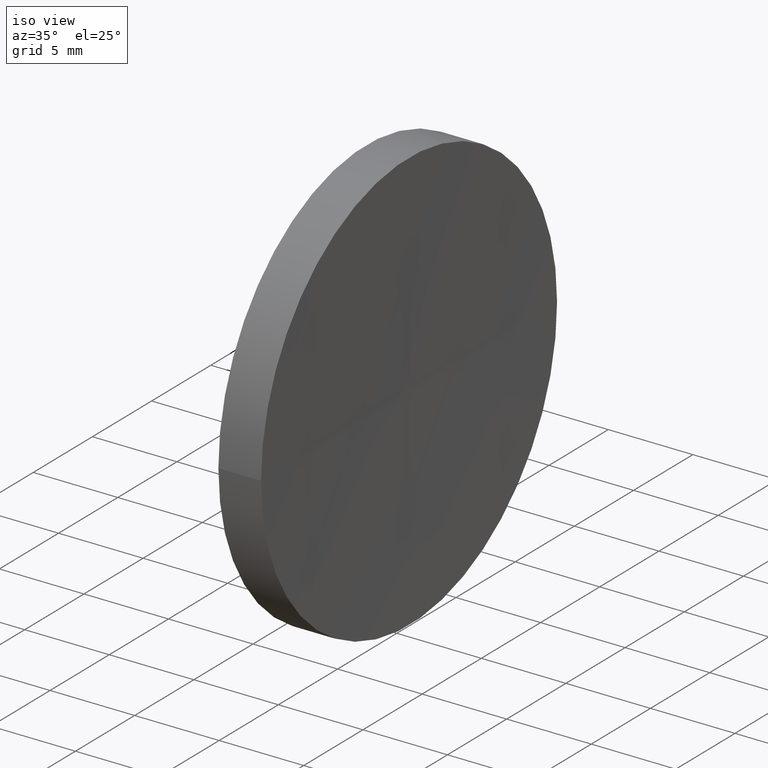
[diagram: clean part render]
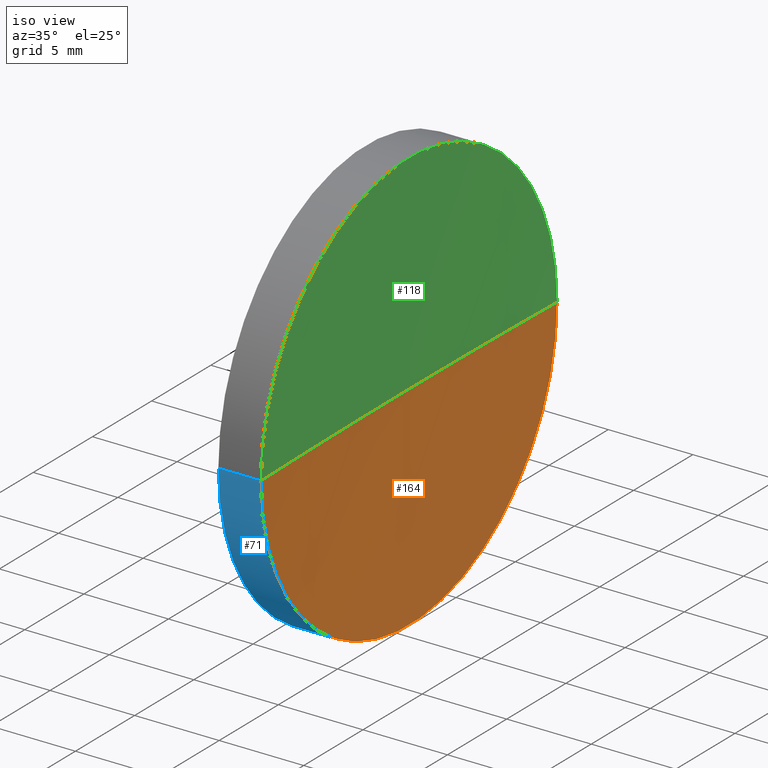
[diagram: same view with three faces highlighted in distinct colors, each labeled with its STEP entity id]
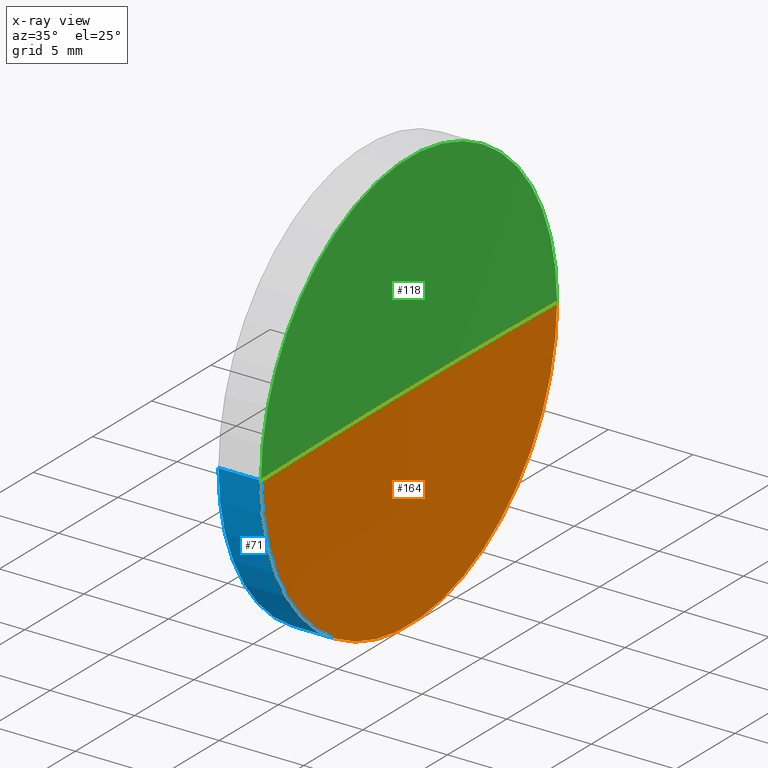
[diagram: x-ray of the same camera — body ghosted, the three highlighted faces saturated]
A machine part, iso view with three faces highlighted in distinct colors.
The next image is the same camera in x-ray (body ghosted, the three faces saturated) — at least one of them is partly hidden behind the body in this view.
Their STEP definitions:

[orange] entity #164 — the highlighted spherical surface has radius 481.4 mm.
#1 = ORIENTED_EDGE ( 'NONE', *, *, #87, .F. ) ;
#9 = DIRECTION ( 'NONE',  ( 0.0000000000000000000, 0.0000000000000000000, -1.000000000000000000 ) ) ;
#19 = ORIENTED_EDGE ( 'NONE', *, *, #49, .T. ) ;
#36 = DIRECTION ( 'NONE',  ( -1.000000000000000000, -6.937607244762875000E-016, -0.0000000000000000000 ) ) ;
#38 = CIRCLE ( 'NONE', #180, 481.4000000000000300 ) ;
#49 = EDGE_CURVE ( 'NONE', #59, #55, #38, .T. ) ;
#54 = DIRECTION ( 'NONE',  ( -1.000000000000000000, 0.0000000000000000000, 0.0000000000000000000 ) ) ;
#55 = VERTEX_POINT ( 'NONE', #106 ) ;
#59 = VERTEX_POINT ( 'NONE', #129 ) ;
#60 = DIRECTION ( 'NONE',  ( 6.918714320472516000E-016, -1.000000000000000000, 0.0000000000000000000 ) ) ;
#67 = CARTESIAN_POINT ( 'NONE',  ( 606.8121936984948700, 65.21684047094143500, 0.0000000000000000000 ) ) ;
#69 = DIRECTION ( 'NONE',  ( 8.496118506040342700E-032, -1.224646799147353200E-016, 1.000000000000000000 ) ) ;
#73 = SPHERICAL_SURFACE ( 'NONE', #91, 481.4000000000000300 ) ;
#87 = EDGE_CURVE ( 'NONE', #107, #55, #149, .T. ) ;
#91 = AXIS2_PLACEMENT_3D ( 'NONE', #104, #184, #60 ) ;
#94 = DIRECTION ( 'NONE',  ( 0.0000000000000000000, -1.000000000000000000, -1.224646799147353200E-016 ) ) ;
#96 = CARTESIAN_POINT ( 'NONE',  ( 606.8121936984948700, 65.21684047094143500, 0.0000000000000000000 ) ) ;
#103 = EDGE_LOOP ( 'NONE', ( #152, #19, #1 ) ) ;
#104 = CARTESIAN_POINT ( 'NONE',  ( 606.8121936984948700, 65.21684047094143500, 0.0000000000000000000 ) ) ;
#106 = CARTESIAN_POINT ( 'NONE',  ( 125.4121936984947600, 65.21684047094107900, 0.0000000000000000000 ) ) ;
#107 = VERTEX_POINT ( 'NONE', #113 ) ;
#108 = AXIS2_PLACEMENT_3D ( 'NONE', #160, #36, #175 ) ;
#110 = EDGE_CURVE ( 'NONE', #59, #107, #126, .T. ) ;
#113 = CARTESIAN_POINT ( 'NONE',  ( 125.5745081417628500, 52.71684047094019100, 0.0000000000000000000 ) ) ;
#115 = AXIS2_PLACEMENT_3D ( 'NONE', #67, #9, #54 ) ;
#126 = CIRCLE ( 'NONE', #108, 12.50000000000007300 ) ;
#129 = CARTESIAN_POINT ( 'NONE',  ( 125.5745081417628500, 77.71684047094123600, 1.530808498934208100E-015 ) ) ;
#132 = FACE_OUTER_BOUND ( 'NONE', #103, .T. ) ;
#149 = CIRCLE ( 'NONE', #115, 481.4000000000000300 ) ;
#152 = ORIENTED_EDGE ( 'NONE', *, *, #110, .F. ) ;
#160 = CARTESIAN_POINT ( 'NONE',  ( 125.5745081417627900, 65.21684047094032600, 0.0000000000000000000 ) ) ;
#164 = ADVANCED_FACE ( 'NONE', ( #132 ), #73, .F. ) ;
#175 = DIRECTION ( 'NONE',  ( 0.0000000000000000000, -1.000000000000000000, 0.0000000000000000000 ) ) ;
#180 = AXIS2_PLACEMENT_3D ( 'NONE', #96, #69, #94 ) ;
#184 = DIRECTION ( 'NONE',  ( -0.0000000000000000000, 0.0000000000000000000, 1.000000000000000000 ) ) ;

[blue] entity #71 — the highlighted cylindrical surface (partial cylindrical patch) has radius 12.5 mm, axis along (-1, -0, -0).
#4 = CYLINDRICAL_SURFACE ( 'NONE', #82, 12.50000000000004600 ) ;
#6 = VECTOR ( 'NONE', #80, 1000.000000000000000 ) ;
#11 = VECTOR ( 'NONE', #44, 1000.000000000000000 ) ;
#16 = VERTEX_POINT ( 'NONE', #128 ) ;
#31 = ORIENTED_EDGE ( 'NONE', *, *, #110, .T. ) ;
#36 = DIRECTION ( 'NONE',  ( -1.000000000000000000, -6.937607244762875000E-016, -0.0000000000000000000 ) ) ;
#37 = CARTESIAN_POINT ( 'NONE',  ( 115.9444912979631800, 52.71684047094028400, 0.0000000000000000000 ) ) ;
#41 = LINE ( 'NONE', #161, #6 ) ;
#44 = DIRECTION ( 'NONE',  ( -1.000000000000000000, -6.937607244762875000E-016, -0.0000000000000000000 ) ) ;
#51 = DIRECTION ( 'NONE',  ( 1.110223024625156100E-015, -1.000000000000000000, 0.0000000000000000000 ) ) ;
#59 = VERTEX_POINT ( 'NONE', #129 ) ;
#63 = LINE ( 'NONE', #37, #11 ) ;
#64 = CARTESIAN_POINT ( 'NONE',  ( 115.9444912979631700, 65.21684047094032600, 0.0000000000000000000 ) ) ;
#70 = ORIENTED_EDGE ( 'NONE', *, *, #121, .F. ) ;
#71 = ADVANCED_FACE ( 'NONE', ( #119 ), #4, .T. ) ;
#72 = ORIENTED_EDGE ( 'NONE', *, *, #78, .F. ) ;
#75 = ORIENTED_EDGE ( 'NONE', *, *, #156, .T. ) ;
#78 = EDGE_CURVE ( 'NONE', #171, #16, #133, .T. ) ;
#80 = DIRECTION ( 'NONE',  ( -1.000000000000000000, -6.937607244762875000E-016, -0.0000000000000000000 ) ) ;
#82 = AXIS2_PLACEMENT_3D ( 'NONE', #64, #93, #190 ) ;
#88 = CARTESIAN_POINT ( 'NONE',  ( 123.0516406468668300, 77.71684047094032600, 0.0000000000000000000 ) ) ;
#93 = DIRECTION ( 'NONE',  ( -1.000000000000000000, -6.937607244762875000E-016, -0.0000000000000000000 ) ) ;
#107 = VERTEX_POINT ( 'NONE', #113 ) ;
#108 = AXIS2_PLACEMENT_3D ( 'NONE', #160, #36, #175 ) ;
#110 = EDGE_CURVE ( 'NONE', #59, #107, #126, .T. ) ;
#113 = CARTESIAN_POINT ( 'NONE',  ( 125.5745081417628500, 52.71684047094019100, 0.0000000000000000000 ) ) ;
#114 = CARTESIAN_POINT ( 'NONE',  ( 123.0516406468668300, 65.21684047094032600, 0.0000000000000000000 ) ) ;
#119 = FACE_OUTER_BOUND ( 'NONE', #162, .T. ) ;
#121 = EDGE_CURVE ( 'NONE', #59, #171, #41, .T. ) ;
#126 = CIRCLE ( 'NONE', #108, 12.50000000000007300 ) ;
#128 = CARTESIAN_POINT ( 'NONE',  ( 123.0516406468668300, 52.71684047094017700, -1.530808498934191500E-015 ) ) ;
#129 = CARTESIAN_POINT ( 'NONE',  ( 125.5745081417628500, 77.71684047094123600, 1.530808498934208100E-015 ) ) ;
#133 = CIRCLE ( 'NONE', #176, 12.50000000000000400 ) ;
#148 = DIRECTION ( 'NONE',  ( -1.000000000000000000, -6.937607244762875000E-016, -0.0000000000000000000 ) ) ;
#156 = EDGE_CURVE ( 'NONE', #107, #16, #63, .T. ) ;
#160 = CARTESIAN_POINT ( 'NONE',  ( 125.5745081417627900, 65.21684047094032600, 0.0000000000000000000 ) ) ;
#161 = CARTESIAN_POINT ( 'NONE',  ( 115.9444912979631500, 77.71684047094038300, 1.530808498934197200E-015 ) ) ;
#162 = EDGE_LOOP ( 'NONE', ( #70, #31, #75, #72 ) ) ;
#171 = VERTEX_POINT ( 'NONE', #88 ) ;
#175 = DIRECTION ( 'NONE',  ( 0.0000000000000000000, -1.000000000000000000, 0.0000000000000000000 ) ) ;
#176 = AXIS2_PLACEMENT_3D ( 'NONE', #114, #148, #51 ) ;
#190 = DIRECTION ( 'NONE',  ( 1.110223024625152400E-015, -1.000000000000000000, 0.0000000000000000000 ) ) ;

[green] entity #118 — the highlighted spherical surface has radius 481.4 mm.
#9 = DIRECTION ( 'NONE',  ( 0.0000000000000000000, 0.0000000000000000000, -1.000000000000000000 ) ) ;
#12 = AXIS2_PLACEMENT_3D ( 'NONE', #52, #81, #26 ) ;
#13 = EDGE_CURVE ( 'NONE', #107, #59, #84, .T. ) ;
#26 = DIRECTION ( 'NONE',  ( 6.918714320472516000E-016, -1.000000000000000000, 0.0000000000000000000 ) ) ;
#38 = CIRCLE ( 'NONE', #180, 481.4000000000000300 ) ;
#42 = ORIENTED_EDGE ( 'NONE', *, *, #49, .F. ) ;
#48 = ORIENTED_EDGE ( 'NONE', *, *, #87, .T. ) ;
#49 = EDGE_CURVE ( 'NONE', #59, #55, #38, .T. ) ;
#52 = CARTESIAN_POINT ( 'NONE',  ( 606.8121936984948700, 65.21684047094143500, 0.0000000000000000000 ) ) ;
#54 = DIRECTION ( 'NONE',  ( -1.000000000000000000, 0.0000000000000000000, 0.0000000000000000000 ) ) ;
#55 = VERTEX_POINT ( 'NONE', #106 ) ;
#59 = VERTEX_POINT ( 'NONE', #129 ) ;
#65 = DIRECTION ( 'NONE',  ( 0.0000000000000000000, -1.000000000000000000, 0.0000000000000000000 ) ) ;
#67 = CARTESIAN_POINT ( 'NONE',  ( 606.8121936984948700, 65.21684047094143500, 0.0000000000000000000 ) ) ;
#69 = DIRECTION ( 'NONE',  ( 8.496118506040342700E-032, -1.224646799147353200E-016, 1.000000000000000000 ) ) ;
#81 = DIRECTION ( 'NONE',  ( -0.0000000000000000000, 0.0000000000000000000, 1.000000000000000000 ) ) ;
#84 = CIRCLE ( 'NONE', #147, 12.50000000000007300 ) ;
#86 = SPHERICAL_SURFACE ( 'NONE', #12, 481.4000000000000300 ) ;
#87 = EDGE_CURVE ( 'NONE', #107, #55, #149, .T. ) ;
#94 = DIRECTION ( 'NONE',  ( 0.0000000000000000000, -1.000000000000000000, -1.224646799147353200E-016 ) ) ;
#96 = CARTESIAN_POINT ( 'NONE',  ( 606.8121936984948700, 65.21684047094143500, 0.0000000000000000000 ) ) ;
#106 = CARTESIAN_POINT ( 'NONE',  ( 125.4121936984947600, 65.21684047094107900, 0.0000000000000000000 ) ) ;
#107 = VERTEX_POINT ( 'NONE', #113 ) ;
#112 = EDGE_LOOP ( 'NONE', ( #42, #117, #48 ) ) ;
#113 = CARTESIAN_POINT ( 'NONE',  ( 125.5745081417628500, 52.71684047094019100, 0.0000000000000000000 ) ) ;
#115 = AXIS2_PLACEMENT_3D ( 'NONE', #67, #9, #54 ) ;
#117 = ORIENTED_EDGE ( 'NONE', *, *, #13, .F. ) ;
#118 = ADVANCED_FACE ( 'NONE', ( #122 ), #86, .F. ) ;
#122 = FACE_OUTER_BOUND ( 'NONE', #112, .T. ) ;
#129 = CARTESIAN_POINT ( 'NONE',  ( 125.5745081417628500, 77.71684047094123600, 1.530808498934208100E-015 ) ) ;
#143 = DIRECTION ( 'NONE',  ( -1.000000000000000000, -6.937607244762875000E-016, -0.0000000000000000000 ) ) ;
#147 = AXIS2_PLACEMENT_3D ( 'NONE', #173, #143, #65 ) ;
#149 = CIRCLE ( 'NONE', #115, 481.4000000000000300 ) ;
#173 = CARTESIAN_POINT ( 'NONE',  ( 125.5745081417627900, 65.21684047094032600, 0.0000000000000000000 ) ) ;
#180 = AXIS2_PLACEMENT_3D ( 'NONE', #96, #69, #94 ) ;